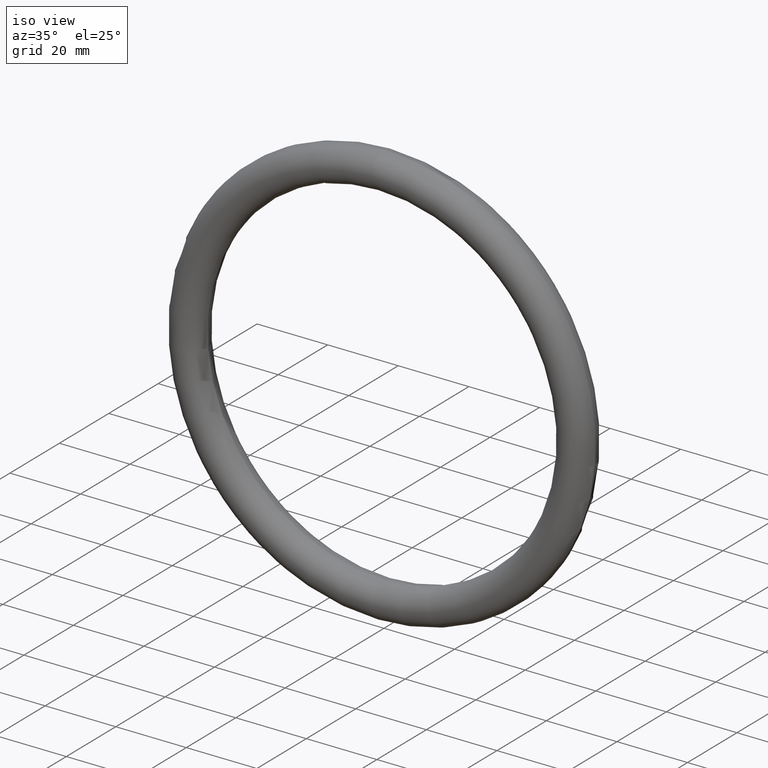
[diagram: clean part render]
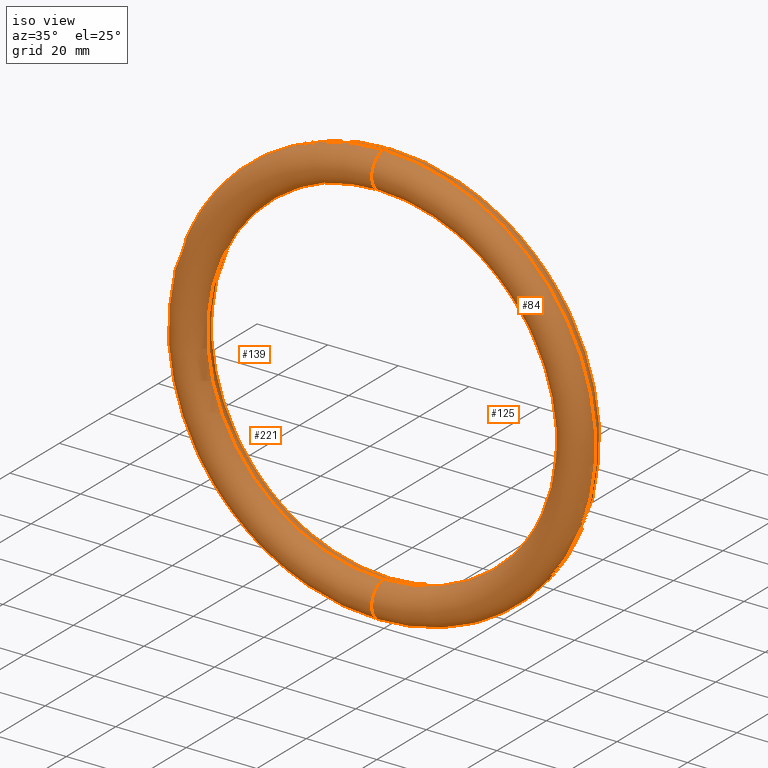
[diagram: same view with one multi-face feature highlighted, each face labeled with its STEP entity id]
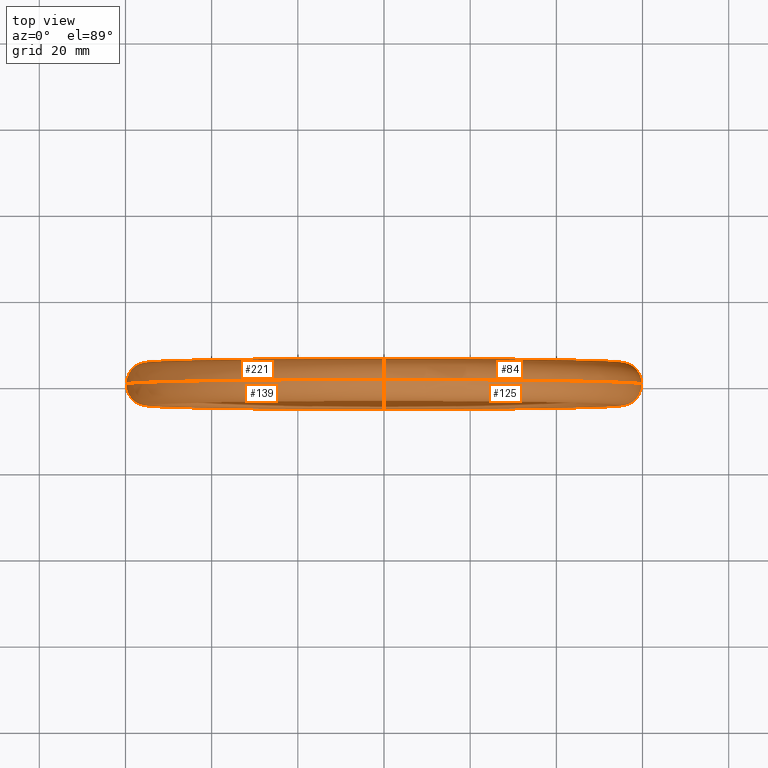
[diagram: same view with one multi-face feature highlighted, each face labeled with its STEP entity id]
A machine part, iso view. The highlighted faces form ONE feature: a constant-radius fillet chain: 4 tangent blend faces with common blend radius 5 mm. The faces share edges in the B-rep.
A second angle (top view) of the same feature is appended — it is thin or edge-on in the first view.
Their STEP definitions:
[1] entity #139 (Torus):
#11 = DIRECTION ( 'NONE',  ( -0.000000000000000000, -1.000000000000000000, -0.000000000000000000 ) ) ;
#22 = CARTESIAN_POINT ( 'NONE',  ( 0.000000000000000000, 0.000000000000000000, 0.000000000000000000 ) ) ;
#28 = EDGE_CURVE ( 'NONE', #44, #236, #174, .T. ) ;
#32 = CARTESIAN_POINT ( 'NONE',  ( 0.000000000000000000, 6.123233995736763324E-16, 0.000000000000000000 ) ) ;
#42 = DIRECTION ( 'NONE',  ( 1.000000000000000000, 0.000000000000000000, -1.224646799147353207E-16 ) ) ;
#44 = VERTEX_POINT ( 'NONE', #244 ) ;
#48 = CIRCLE ( 'NONE', #234, 60.00000000000000000 ) ;
#49 = DIRECTION ( 'NONE',  ( 0.000000000000000000, 0.000000000000000000, -1.000000000000000000 ) ) ;
#50 = DIRECTION ( 'NONE',  ( -0.000000000000000000, -1.000000000000000000, -0.000000000000000000 ) ) ;
#59 = VERTEX_POINT ( 'NONE', #98 ) ;
#66 = DIRECTION ( 'NONE',  ( -1.224646799147352714E-16, 0.000000000000000000, -1.000000000000000000 ) ) ;
#69 = CARTESIAN_POINT ( 'NONE',  ( 6.735557395310442615E-15, 0.000000000000000000, 55.00000000000000000 ) ) ;
#71 = FACE_OUTER_BOUND ( 'NONE', #182, .T. ) ;
#89 = DIRECTION ( 'NONE',  ( 0.000000000000000000, 0.000000000000000000, -1.000000000000000000 ) ) ;
#94 = CARTESIAN_POINT ( 'NONE',  ( 0.000000000000000000, 0.000000000000000000, 0.000000000000000000 ) ) ;
#96 = ORIENTED_EDGE ( 'NONE', *, *, #106, .F. ) ;
#98 = CARTESIAN_POINT ( 'NONE',  ( 6.123233995736766085E-15, 0.000000000000000000, 50.00000000000000000 ) ) ;
#106 = EDGE_CURVE ( 'NONE', #140, #59, #148, .T. ) ;
#107 = DIRECTION ( 'NONE',  ( 0.000000000000000000, 0.000000000000000000, -1.000000000000000000 ) ) ;
#131 = CARTESIAN_POINT ( 'NONE',  ( 0.000000000000000000, 0.000000000000000000, -50.00000000000000000 ) ) ;
#132 = DIRECTION ( 'NONE',  ( -1.000000000000000000, 0.000000000000000000, 0.000000000000000000 ) ) ;
#134 = AXIS2_PLACEMENT_3D ( 'NONE', #265, #132, #204 ) ;
#139 = ADVANCED_FACE ( 'NONE', ( #71 ), #222, .T. ) ;
#140 = VERTEX_POINT ( 'NONE', #193 ) ;
#148 = CIRCLE ( 'NONE', #184, 4.999999999999997335 ) ;
#149 = EDGE_CURVE ( 'NONE', #140, #44, #48, .T. ) ;
#171 = DIRECTION ( 'NONE',  ( -0.000000000000000000, -1.000000000000000000, -0.000000000000000000 ) ) ;
#174 = CIRCLE ( 'NONE', #134, 4.999999999999997335 ) ;
#182 = EDGE_LOOP ( 'NONE', ( #96, #271, #190, #257 ) ) ;
#184 = AXIS2_PLACEMENT_3D ( 'NONE', #69, #42, #66 ) ;
#190 = ORIENTED_EDGE ( 'NONE', *, *, #28, .T. ) ;
#193 = CARTESIAN_POINT ( 'NONE',  ( 7.347880794884118356E-15, 0.000000000000000000, 60.00000000000000000 ) ) ;
#195 = AXIS2_PLACEMENT_3D ( 'NONE', #22, #171, #89 ) ;
#198 = EDGE_CURVE ( 'NONE', #59, #236, #215, .T. ) ;
#204 = DIRECTION ( 'NONE',  ( 0.000000000000000000, 0.000000000000000000, 1.000000000000000000 ) ) ;
#215 = CIRCLE ( 'NONE', #229, 50.00000000000000000 ) ;
#222 = TOROIDAL_SURFACE ( 'NONE', #195, 55.00000000000000000, 4.999999999999997335 ) ;
#229 = AXIS2_PLACEMENT_3D ( 'NONE', #32, #50, #107 ) ;
#234 = AXIS2_PLACEMENT_3D ( 'NONE', #94, #11, #49 ) ;
#236 = VERTEX_POINT ( 'NONE', #131 ) ;
#244 = CARTESIAN_POINT ( 'NONE',  ( 0.000000000000000000, 0.000000000000000000, -60.00000000000000000 ) ) ;
#257 = ORIENTED_EDGE ( 'NONE', *, *, #198, .F. ) ;
#265 = CARTESIAN_POINT ( 'NONE',  ( 0.000000000000000000, 0.000000000000000000, -55.00000000000000000 ) ) ;
#271 = ORIENTED_EDGE ( 'NONE', *, *, #149, .T. ) ;
[2] entity #221 (Torus):
#2 = EDGE_LOOP ( 'NONE', ( #211, #165, #230, #154 ) ) ;
#3 = CIRCLE ( 'NONE', #161, 4.999999999999997335 ) ;
#11 = DIRECTION ( 'NONE',  ( -0.000000000000000000, -1.000000000000000000, -0.000000000000000000 ) ) ;
#23 = CARTESIAN_POINT ( 'NONE',  ( 6.735557395310442615E-15, 0.000000000000000000, 55.00000000000000000 ) ) ;
#32 = CARTESIAN_POINT ( 'NONE',  ( 0.000000000000000000, 6.123233995736763324E-16, 0.000000000000000000 ) ) ;
#44 = VERTEX_POINT ( 'NONE', #244 ) ;
#46 = DIRECTION ( 'NONE',  ( 1.000000000000000000, 0.000000000000000000, -1.224646799147353207E-16 ) ) ;
#48 = CIRCLE ( 'NONE', #234, 60.00000000000000000 ) ;
#49 = DIRECTION ( 'NONE',  ( 0.000000000000000000, 0.000000000000000000, -1.000000000000000000 ) ) ;
#50 = DIRECTION ( 'NONE',  ( -0.000000000000000000, -1.000000000000000000, -0.000000000000000000 ) ) ;
#52 = DIRECTION ( 'NONE',  ( -1.000000000000000000, 0.000000000000000000, 0.000000000000000000 ) ) ;
#59 = VERTEX_POINT ( 'NONE', #98 ) ;
#61 = CIRCLE ( 'NONE', #214, 4.999999999999997335 ) ;
#68 = DIRECTION ( 'NONE',  ( -1.224646799147352714E-16, 0.000000000000000000, -1.000000000000000000 ) ) ;
#94 = CARTESIAN_POINT ( 'NONE',  ( 0.000000000000000000, 0.000000000000000000, 0.000000000000000000 ) ) ;
#98 = CARTESIAN_POINT ( 'NONE',  ( 6.123233995736766085E-15, 0.000000000000000000, 50.00000000000000000 ) ) ;
#103 = EDGE_CURVE ( 'NONE', #59, #140, #3, .T. ) ;
#107 = DIRECTION ( 'NONE',  ( 0.000000000000000000, 0.000000000000000000, -1.000000000000000000 ) ) ;
#129 = DIRECTION ( 'NONE',  ( -0.000000000000000000, -1.000000000000000000, -0.000000000000000000 ) ) ;
#131 = CARTESIAN_POINT ( 'NONE',  ( 0.000000000000000000, 0.000000000000000000, -50.00000000000000000 ) ) ;
#140 = VERTEX_POINT ( 'NONE', #193 ) ;
#145 = TOROIDAL_SURFACE ( 'NONE', #253, 55.00000000000000000, 4.999999999999997335 ) ;
#149 = EDGE_CURVE ( 'NONE', #140, #44, #48, .T. ) ;
#154 = ORIENTED_EDGE ( 'NONE', *, *, #166, .T. ) ;
#159 = DIRECTION ( 'NONE',  ( 0.000000000000000000, 0.000000000000000000, 1.000000000000000000 ) ) ;
#161 = AXIS2_PLACEMENT_3D ( 'NONE', #23, #46, #68 ) ;
#165 = ORIENTED_EDGE ( 'NONE', *, *, #103, .F. ) ;
#166 = EDGE_CURVE ( 'NONE', #236, #44, #61, .T. ) ;
#193 = CARTESIAN_POINT ( 'NONE',  ( 7.347880794884118356E-15, 0.000000000000000000, 60.00000000000000000 ) ) ;
#198 = EDGE_CURVE ( 'NONE', #59, #236, #215, .T. ) ;
#200 = CARTESIAN_POINT ( 'NONE',  ( 0.000000000000000000, 0.000000000000000000, 0.000000000000000000 ) ) ;
#211 = ORIENTED_EDGE ( 'NONE', *, *, #149, .F. ) ;
#214 = AXIS2_PLACEMENT_3D ( 'NONE', #261, #52, #159 ) ;
#215 = CIRCLE ( 'NONE', #229, 50.00000000000000000 ) ;
#221 = ADVANCED_FACE ( 'NONE', ( #260 ), #145, .T. ) ;
#229 = AXIS2_PLACEMENT_3D ( 'NONE', #32, #50, #107 ) ;
#230 = ORIENTED_EDGE ( 'NONE', *, *, #198, .T. ) ;
#234 = AXIS2_PLACEMENT_3D ( 'NONE', #94, #11, #49 ) ;
#236 = VERTEX_POINT ( 'NONE', #131 ) ;
#244 = CARTESIAN_POINT ( 'NONE',  ( 0.000000000000000000, 0.000000000000000000, -60.00000000000000000 ) ) ;
#245 = DIRECTION ( 'NONE',  ( 0.000000000000000000, 0.000000000000000000, -1.000000000000000000 ) ) ;
#253 = AXIS2_PLACEMENT_3D ( 'NONE', #200, #129, #245 ) ;
#260 = FACE_OUTER_BOUND ( 'NONE', #2, .T. ) ;
#261 = CARTESIAN_POINT ( 'NONE',  ( 0.000000000000000000, 0.000000000000000000, -55.00000000000000000 ) ) ;
[3] entity #84 (Torus):
#3 = CIRCLE ( 'NONE', #161, 4.999999999999997335 ) ;
#6 = AXIS2_PLACEMENT_3D ( 'NONE', #130, #202, #54 ) ;
#23 = CARTESIAN_POINT ( 'NONE',  ( 6.735557395310442615E-15, 0.000000000000000000, 55.00000000000000000 ) ) ;
#44 = VERTEX_POINT ( 'NONE', #244 ) ;
#46 = DIRECTION ( 'NONE',  ( 1.000000000000000000, 0.000000000000000000, -1.224646799147353207E-16 ) ) ;
#52 = DIRECTION ( 'NONE',  ( -1.000000000000000000, 0.000000000000000000, 0.000000000000000000 ) ) ;
#54 = DIRECTION ( 'NONE',  ( 0.000000000000000000, 0.000000000000000000, -1.000000000000000000 ) ) ;
#59 = VERTEX_POINT ( 'NONE', #98 ) ;
#61 = CIRCLE ( 'NONE', #214, 4.999999999999997335 ) ;
#64 = CIRCLE ( 'NONE', #269, 60.00000000000000000 ) ;
#68 = DIRECTION ( 'NONE',  ( -1.224646799147352714E-16, 0.000000000000000000, -1.000000000000000000 ) ) ;
#82 = ORIENTED_EDGE ( 'NONE', *, *, #115, .F. ) ;
#83 = EDGE_CURVE ( 'NONE', #236, #59, #239, .T. ) ;
#84 = ADVANCED_FACE ( 'NONE', ( #104 ), #186, .T. ) ;
#98 = CARTESIAN_POINT ( 'NONE',  ( 6.123233995736766085E-15, 0.000000000000000000, 50.00000000000000000 ) ) ;
#103 = EDGE_CURVE ( 'NONE', #59, #140, #3, .T. ) ;
#104 = FACE_OUTER_BOUND ( 'NONE', #118, .T. ) ;
#115 = EDGE_CURVE ( 'NONE', #44, #140, #64, .T. ) ;
#118 = EDGE_LOOP ( 'NONE', ( #82, #237, #227, #170 ) ) ;
#122 = CARTESIAN_POINT ( 'NONE',  ( 0.000000000000000000, 0.000000000000000000, 0.000000000000000000 ) ) ;
#130 = CARTESIAN_POINT ( 'NONE',  ( 0.000000000000000000, 0.000000000000000000, 0.000000000000000000 ) ) ;
#131 = CARTESIAN_POINT ( 'NONE',  ( 0.000000000000000000, 0.000000000000000000, -50.00000000000000000 ) ) ;
#140 = VERTEX_POINT ( 'NONE', #193 ) ;
#144 = AXIS2_PLACEMENT_3D ( 'NONE', #156, #183, #180 ) ;
#146 = DIRECTION ( 'NONE',  ( -0.000000000000000000, -1.000000000000000000, -0.000000000000000000 ) ) ;
#156 = CARTESIAN_POINT ( 'NONE',  ( 0.000000000000000000, 6.123233995736763324E-16, 0.000000000000000000 ) ) ;
#159 = DIRECTION ( 'NONE',  ( 0.000000000000000000, 0.000000000000000000, 1.000000000000000000 ) ) ;
#161 = AXIS2_PLACEMENT_3D ( 'NONE', #23, #46, #68 ) ;
#166 = EDGE_CURVE ( 'NONE', #236, #44, #61, .T. ) ;
#170 = ORIENTED_EDGE ( 'NONE', *, *, #103, .T. ) ;
#180 = DIRECTION ( 'NONE',  ( 0.000000000000000000, 0.000000000000000000, -1.000000000000000000 ) ) ;
#183 = DIRECTION ( 'NONE',  ( -0.000000000000000000, -1.000000000000000000, -0.000000000000000000 ) ) ;
#186 = TOROIDAL_SURFACE ( 'NONE', #6, 55.00000000000000000, 4.999999999999997335 ) ;
#193 = CARTESIAN_POINT ( 'NONE',  ( 7.347880794884118356E-15, 0.000000000000000000, 60.00000000000000000 ) ) ;
#202 = DIRECTION ( 'NONE',  ( -0.000000000000000000, -1.000000000000000000, -0.000000000000000000 ) ) ;
#214 = AXIS2_PLACEMENT_3D ( 'NONE', #261, #52, #159 ) ;
#217 = DIRECTION ( 'NONE',  ( 0.000000000000000000, 0.000000000000000000, -1.000000000000000000 ) ) ;
#227 = ORIENTED_EDGE ( 'NONE', *, *, #83, .T. ) ;
#236 = VERTEX_POINT ( 'NONE', #131 ) ;
#237 = ORIENTED_EDGE ( 'NONE', *, *, #166, .F. ) ;
#239 = CIRCLE ( 'NONE', #144, 50.00000000000000000 ) ;
#244 = CARTESIAN_POINT ( 'NONE',  ( 0.000000000000000000, 0.000000000000000000, -60.00000000000000000 ) ) ;
#261 = CARTESIAN_POINT ( 'NONE',  ( 0.000000000000000000, 0.000000000000000000, -55.00000000000000000 ) ) ;
#269 = AXIS2_PLACEMENT_3D ( 'NONE', #122, #146, #217 ) ;
[4] entity #125 (Torus):
#20 = EDGE_LOOP ( 'NONE', ( #39, #152, #143, #210 ) ) ;
#28 = EDGE_CURVE ( 'NONE', #44, #236, #174, .T. ) ;
#39 = ORIENTED_EDGE ( 'NONE', *, *, #28, .F. ) ;
#42 = DIRECTION ( 'NONE',  ( 1.000000000000000000, 0.000000000000000000, -1.224646799147353207E-16 ) ) ;
#44 = VERTEX_POINT ( 'NONE', #244 ) ;
#58 = FACE_OUTER_BOUND ( 'NONE', #20, .T. ) ;
#59 = VERTEX_POINT ( 'NONE', #98 ) ;
#64 = CIRCLE ( 'NONE', #269, 60.00000000000000000 ) ;
#66 = DIRECTION ( 'NONE',  ( -1.224646799147352714E-16, 0.000000000000000000, -1.000000000000000000 ) ) ;
#69 = CARTESIAN_POINT ( 'NONE',  ( 6.735557395310442615E-15, 0.000000000000000000, 55.00000000000000000 ) ) ;
#83 = EDGE_CURVE ( 'NONE', #236, #59, #239, .T. ) ;
#90 = DIRECTION ( 'NONE',  ( 0.000000000000000000, 0.000000000000000000, -1.000000000000000000 ) ) ;
#98 = CARTESIAN_POINT ( 'NONE',  ( 6.123233995736766085E-15, 0.000000000000000000, 50.00000000000000000 ) ) ;
#106 = EDGE_CURVE ( 'NONE', #140, #59, #148, .T. ) ;
#115 = EDGE_CURVE ( 'NONE', #44, #140, #64, .T. ) ;
#122 = CARTESIAN_POINT ( 'NONE',  ( 0.000000000000000000, 0.000000000000000000, 0.000000000000000000 ) ) ;
#125 = ADVANCED_FACE ( 'NONE', ( #58 ), #167, .T. ) ;
#131 = CARTESIAN_POINT ( 'NONE',  ( 0.000000000000000000, 0.000000000000000000, -50.00000000000000000 ) ) ;
#132 = DIRECTION ( 'NONE',  ( -1.000000000000000000, 0.000000000000000000, 0.000000000000000000 ) ) ;
#134 = AXIS2_PLACEMENT_3D ( 'NONE', #265, #132, #204 ) ;
#140 = VERTEX_POINT ( 'NONE', #193 ) ;
#143 = ORIENTED_EDGE ( 'NONE', *, *, #106, .T. ) ;
#144 = AXIS2_PLACEMENT_3D ( 'NONE', #156, #183, #180 ) ;
#146 = DIRECTION ( 'NONE',  ( -0.000000000000000000, -1.000000000000000000, -0.000000000000000000 ) ) ;
#148 = CIRCLE ( 'NONE', #184, 4.999999999999997335 ) ;
#152 = ORIENTED_EDGE ( 'NONE', *, *, #115, .T. ) ;
#156 = CARTESIAN_POINT ( 'NONE',  ( 0.000000000000000000, 6.123233995736763324E-16, 0.000000000000000000 ) ) ;
#167 = TOROIDAL_SURFACE ( 'NONE', #209, 55.00000000000000000, 4.999999999999997335 ) ;
#174 = CIRCLE ( 'NONE', #134, 4.999999999999997335 ) ;
#180 = DIRECTION ( 'NONE',  ( 0.000000000000000000, 0.000000000000000000, -1.000000000000000000 ) ) ;
#183 = DIRECTION ( 'NONE',  ( -0.000000000000000000, -1.000000000000000000, -0.000000000000000000 ) ) ;
#184 = AXIS2_PLACEMENT_3D ( 'NONE', #69, #42, #66 ) ;
#193 = CARTESIAN_POINT ( 'NONE',  ( 7.347880794884118356E-15, 0.000000000000000000, 60.00000000000000000 ) ) ;
#204 = DIRECTION ( 'NONE',  ( 0.000000000000000000, 0.000000000000000000, 1.000000000000000000 ) ) ;
#209 = AXIS2_PLACEMENT_3D ( 'NONE', #216, #256, #90 ) ;
#210 = ORIENTED_EDGE ( 'NONE', *, *, #83, .F. ) ;
#216 = CARTESIAN_POINT ( 'NONE',  ( 0.000000000000000000, 0.000000000000000000, 0.000000000000000000 ) ) ;
#217 = DIRECTION ( 'NONE',  ( 0.000000000000000000, 0.000000000000000000, -1.000000000000000000 ) ) ;
#236 = VERTEX_POINT ( 'NONE', #131 ) ;
#239 = CIRCLE ( 'NONE', #144, 50.00000000000000000 ) ;
#244 = CARTESIAN_POINT ( 'NONE',  ( 0.000000000000000000, 0.000000000000000000, -60.00000000000000000 ) ) ;
#256 = DIRECTION ( 'NONE',  ( -0.000000000000000000, -1.000000000000000000, -0.000000000000000000 ) ) ;
#265 = CARTESIAN_POINT ( 'NONE',  ( 0.000000000000000000, 0.000000000000000000, -55.00000000000000000 ) ) ;
#269 = AXIS2_PLACEMENT_3D ( 'NONE', #122, #146, #217 ) ;